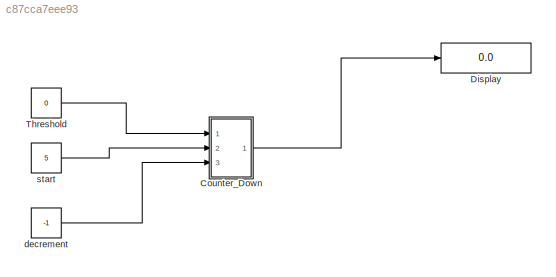
MODEL slx_c87cca7eee93
KIND model
CONFIG AbsTol = auto
CONFIG EnableMultiTasking = off
CONFIG FixedStep = auto
CONFIG MaxStep = auto
CONFIG MinStep = auto
CONFIG RelTol = 1e-3
CONFIG SampleTimeConstraint = Unconstrained
CONFIG SolverName = VariableStepAuto
CONFIG StartTime = 0.0
CONFIG StopTime = 10.0
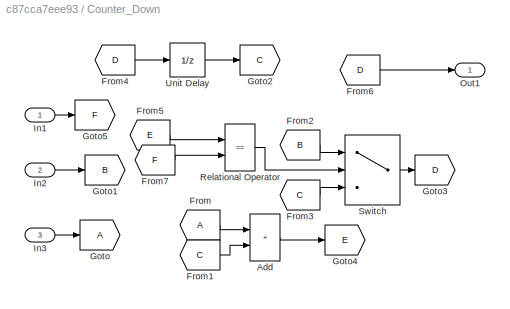
BLOCK [SubSystem] Counter_Down
  Ports = [3, 1]
  RequestExecContextInheritance = off
BLOCK [Sum] Counter_Down/Add
  IconShape = rectangular
  Ports = [2, 1]
BLOCK [From] Counter_Down/From
BLOCK [From] Counter_Down/From1
  GotoTag = C
BLOCK [From] Counter_Down/From2
  GotoTag = B
BLOCK [From] Counter_Down/From3
  GotoTag = C
BLOCK [From] Counter_Down/From4
  GotoTag = D
BLOCK [From] Counter_Down/From5
  GotoTag = E
BLOCK [From] Counter_Down/From6
  GotoTag = D
BLOCK [From] Counter_Down/From7
  GotoTag = F
BLOCK [Goto] Counter_Down/Goto
BLOCK [Goto] Counter_Down/Goto1
  GotoTag = B
BLOCK [Goto] Counter_Down/Goto2
  GotoTag = C
BLOCK [Goto] Counter_Down/Goto3
  GotoTag = D
BLOCK [Goto] Counter_Down/Goto4
  GotoTag = E
BLOCK [Goto] Counter_Down/Goto5
  GotoTag = F
BLOCK [Inport] Counter_Down/In1
BLOCK [Inport] Counter_Down/In2
  Port = 2
BLOCK [Inport] Counter_Down/In3
  Port = 3
BLOCK [Outport] Counter_Down/Out1
BLOCK [RelationalOperator] Counter_Down/Relational Operator
  InputSameDT = off
  Operator = ==
  OutDataTypeStr = boolean
  Ports = [2, 1]
  RndMeth = Simplest
BLOCK [Switch] Counter_Down/Switch
  Criteria = u2 > Threshold
  InputSameDT = off
  SaturateOnIntegerOverflow = off
BLOCK [UnitDelay] Counter_Down/Unit Delay
  HasFrameUpgradeWarning = on
BLOCK [Display] Display
  Decimation = 1
  Ports = [1]
BLOCK [Constant] Threshold
  Value = 0
BLOCK [Constant] decrement
  Value = -1
BLOCK [Constant] start
  Value = 5
LINE Counter_Down/Add:1 -> Counter_Down/Goto4:1
LINE Counter_Down/From1:1 -> Counter_Down/Add:2
LINE Counter_Down/From2:1 -> Counter_Down/Switch:1
LINE Counter_Down/From3:1 -> Counter_Down/Switch:3
LINE Counter_Down/From4:1 -> Counter_Down/Unit Delay:1
LINE Counter_Down/From5:1 -> Counter_Down/Relational Operator:1
LINE Counter_Down/From6:1 -> Counter_Down/Out1:1
LINE Counter_Down/From7:1 -> Counter_Down/Relational Operator:2
LINE Counter_Down/From:1 -> Counter_Down/Add:1
LINE Counter_Down/In1:1 -> Counter_Down/Goto5:1
LINE Counter_Down/In2:1 -> Counter_Down/Goto1:1
LINE Counter_Down/In3:1 -> Counter_Down/Goto:1
LINE Counter_Down/Relational Operator:1 -> Counter_Down/Switch:2
LINE Counter_Down/Switch:1 -> Counter_Down/Goto3:1
LINE Counter_Down/Unit Delay:1 -> Counter_Down/Goto2:1
LINE Counter_Down:1 -> Display:1
LINE Threshold:1 -> Counter_Down:1
LINE decrement:1 -> Counter_Down:3
LINE start:1 -> Counter_Down:2
